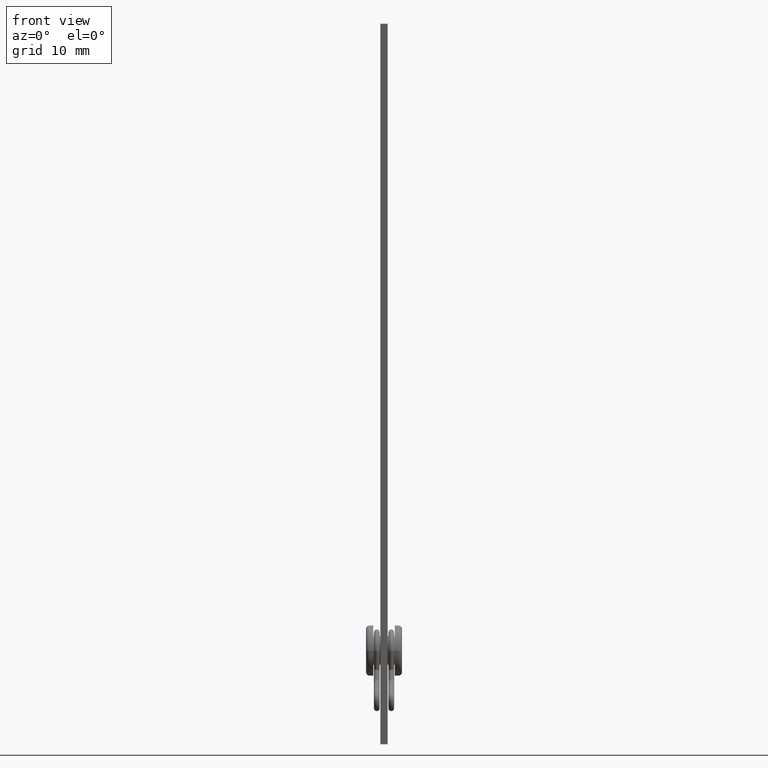
[diagram: clean part render]
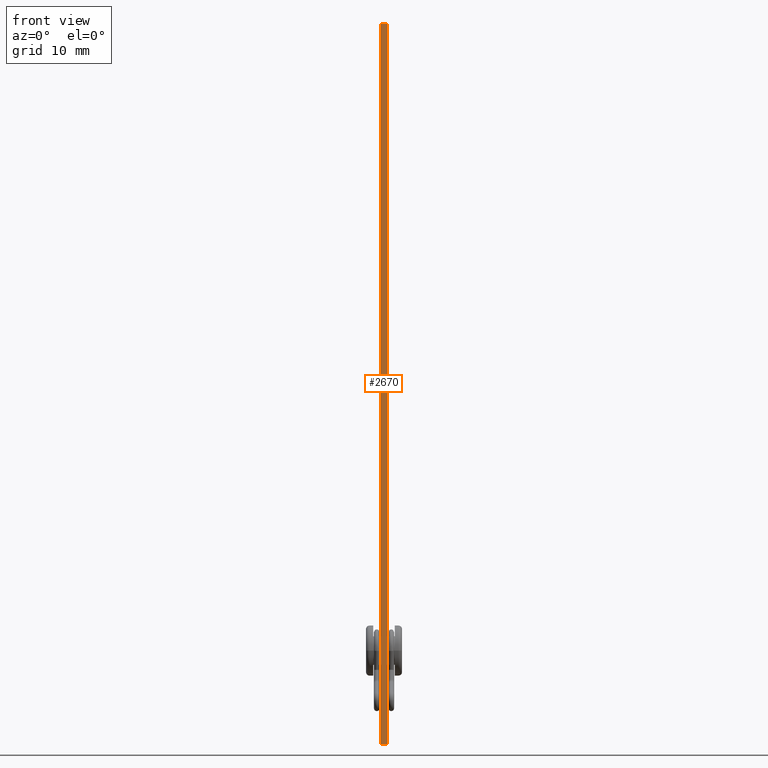
[diagram: same view with one face highlighted and labeled with its STEP entity id]
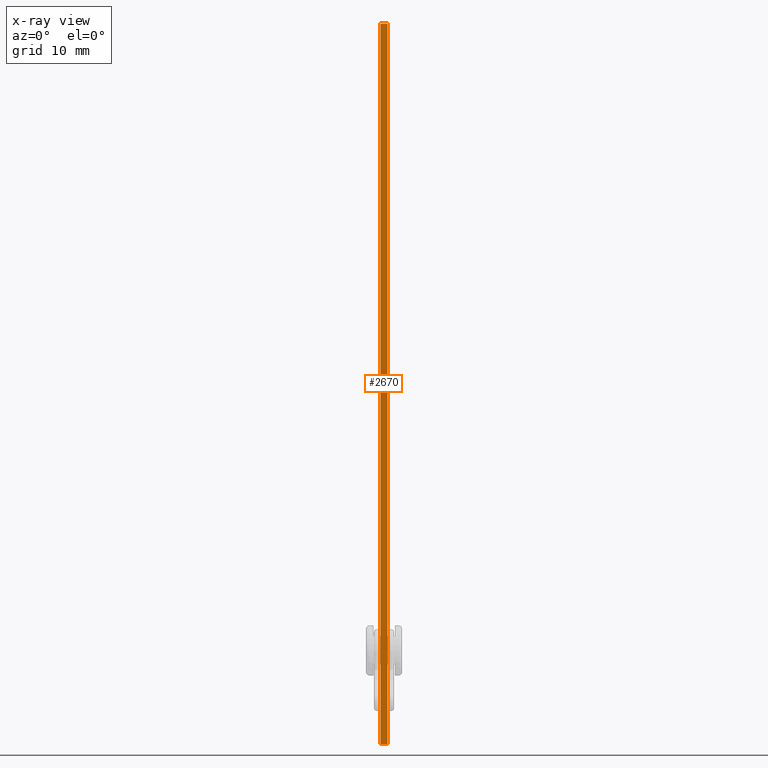
[diagram: x-ray of the same camera — body ghosted, the highlighted face saturated]
A machine part, front view. The second image highlights one B-rep face of the part: STEP entity #2670.
The next image is the same camera in x-ray: the body ghosted, the highlighted face saturated — about 0% of this face is hidden behind the body in this view.
In plain terms, the highlighted planar face has unit normal (0, 1, 0).
Its self-contained STEP definition (entity closure, byte-faithful):
#11 = DIRECTION ( 'NONE',  ( 0.000000000000000000, 1.000000000000000000, 0.000000000000000000 ) ) ;
#12 = CARTESIAN_POINT ( 'NONE',  ( 0.5000000000000007772, -6.999999999999999112, 100.0000000000000000 ) ) ;
#196 = VERTEX_POINT ( 'NONE', #1645 ) ;
#246 = DIRECTION ( 'NONE',  ( -0.000000000000000000, -0.000000000000000000, -1.000000000000000000 ) ) ;
#253 = DIRECTION ( 'NONE',  ( -0.000000000000000000, -0.000000000000000000, -1.000000000000000000 ) ) ;
#414 = CARTESIAN_POINT ( 'NONE',  ( -0.4999999999999990563, -6.999999999999999112, 100.0000000000000000 ) ) ;
#507 = VECTOR ( 'NONE', #253, 1000.000000000000000 ) ;
#690 = EDGE_CURVE ( 'NONE', #2838, #2909, #1450, .T. ) ;
#950 = CARTESIAN_POINT ( 'NONE',  ( -0.4999999999999990563, -6.999999999999999112, 100.0000000000000000 ) ) ;
#986 = FACE_OUTER_BOUND ( 'NONE', #2693, .T. ) ;
#1060 = CARTESIAN_POINT ( 'NONE',  ( 0.5000000000000007772, -6.999999999999999112, 100.0000000000000000 ) ) ;
#1123 = VECTOR ( 'NONE', #2588, 1000.000000000000000 ) ;
#1142 = LINE ( 'NONE', #414, #1123 ) ;
#1153 = EDGE_CURVE ( 'NONE', #1875, #2838, #1142, .T. ) ;
#1176 = CARTESIAN_POINT ( 'NONE',  ( -0.4999999999999990563, -6.999999999999999112, 0.000000000000000000 ) ) ;
#1200 = VECTOR ( 'NONE', #246, 1000.000000000000000 ) ;
#1235 = EDGE_CURVE ( 'NONE', #196, #2909, #2392, .T. ) ;
#1243 = ORIENTED_EDGE ( 'NONE', *, *, #690, .F. ) ;
#1436 = PLANE ( 'NONE',  #2729 ) ;
#1444 = LINE ( 'NONE', #950, #1200 ) ;
#1450 = LINE ( 'NONE', #12, #507 ) ;
#1645 = CARTESIAN_POINT ( 'NONE',  ( -0.4999999999999990563, -6.999999999999999112, 0.000000000000000000 ) ) ;
#1801 = EDGE_CURVE ( 'NONE', #1875, #196, #1444, .T. ) ;
#1875 = VERTEX_POINT ( 'NONE', #2339 ) ;
#2061 = CARTESIAN_POINT ( 'NONE',  ( 0.5000000000000007772, -6.999999999999999112, 0.000000000000000000 ) ) ;
#2077 = ORIENTED_EDGE ( 'NONE', *, *, #1235, .T. ) ;
#2157 = CARTESIAN_POINT ( 'NONE',  ( -0.4999999999999990563, -6.999999999999999112, 100.0000000000000000 ) ) ;
#2252 = ORIENTED_EDGE ( 'NONE', *, *, #1153, .F. ) ;
#2339 = CARTESIAN_POINT ( 'NONE',  ( -0.4999999999999990563, -6.999999999999999112, 100.0000000000000000 ) ) ;
#2390 = DIRECTION ( 'NONE',  ( 0.000000000000000000, -0.000000000000000000, 1.000000000000000000 ) ) ;
#2392 = LINE ( 'NONE', #1176, #3088 ) ;
#2588 = DIRECTION ( 'NONE',  ( 1.000000000000000000, 0.000000000000000000, 0.000000000000000000 ) ) ;
#2670 = ADVANCED_FACE ( 'NONE', ( #986 ), #1436, .F. ) ;
#2693 = EDGE_LOOP ( 'NONE', ( #2077, #1243, #2252, #3117 ) ) ;
#2729 = AXIS2_PLACEMENT_3D ( 'NONE', #2157, #11, #2390 ) ;
#2838 = VERTEX_POINT ( 'NONE', #1060 ) ;
#2909 = VERTEX_POINT ( 'NONE', #2061 ) ;
#3088 = VECTOR ( 'NONE', #3099, 1000.000000000000000 ) ;
#3099 = DIRECTION ( 'NONE',  ( 1.000000000000000000, 0.000000000000000000, 0.000000000000000000 ) ) ;
#3117 = ORIENTED_EDGE ( 'NONE', *, *, #1801, .T. ) ;